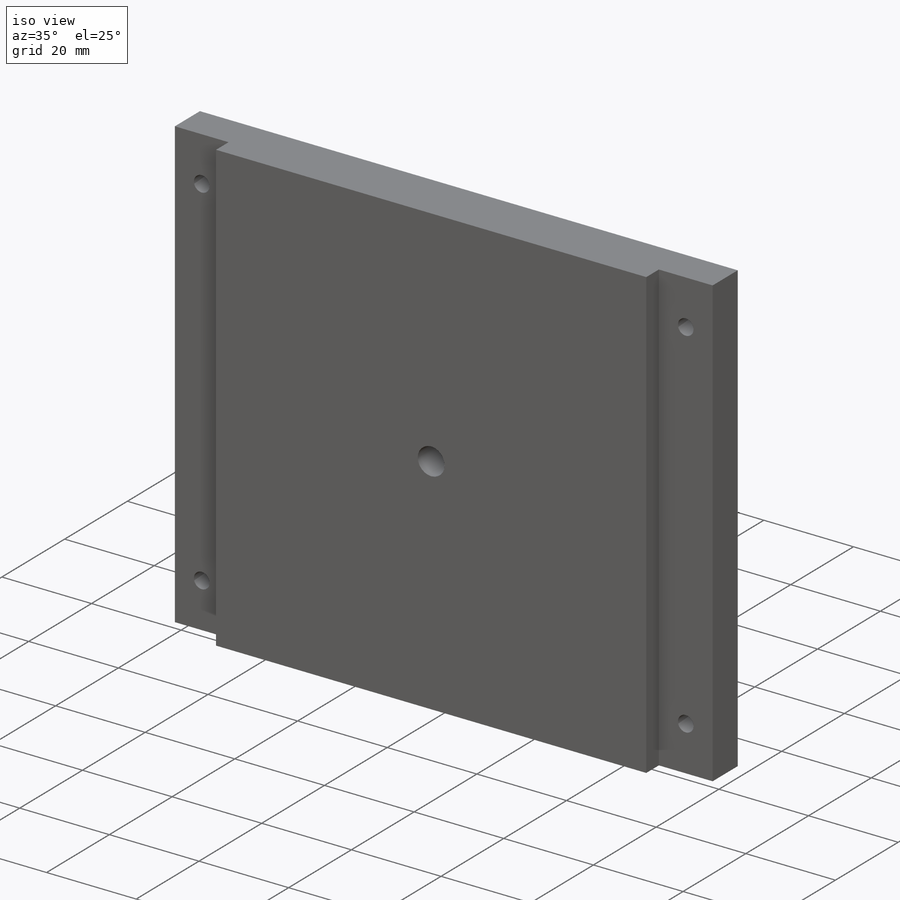
[diagram: iso view]
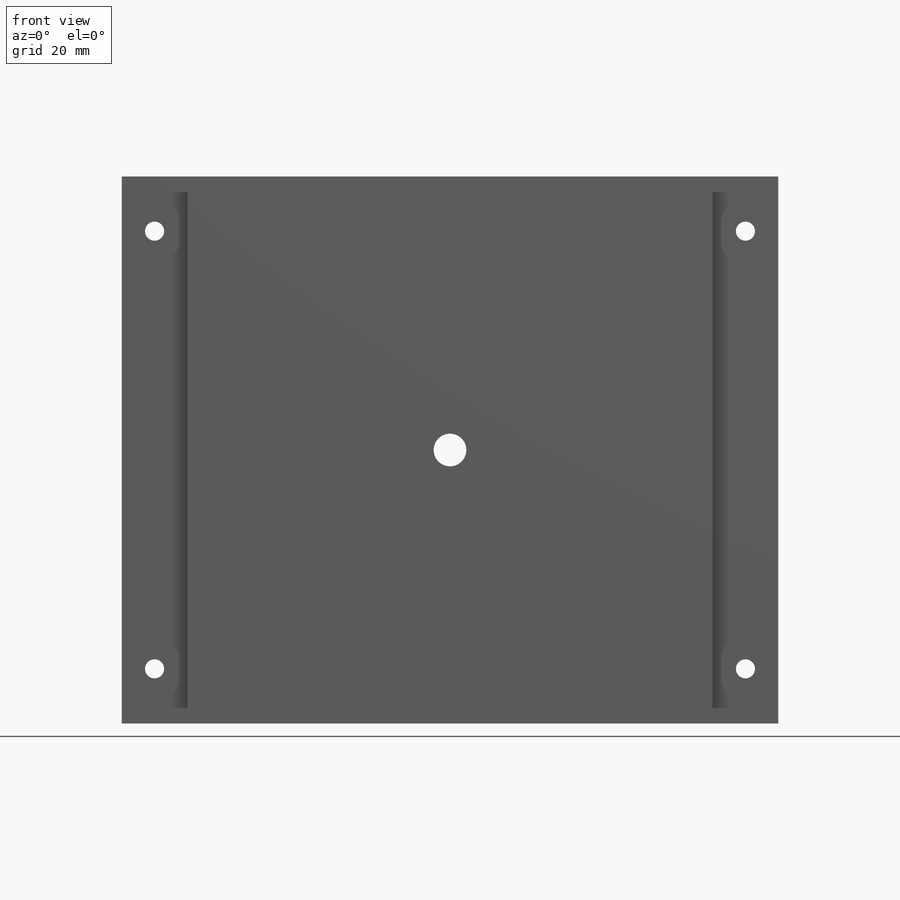
[diagram: front view]
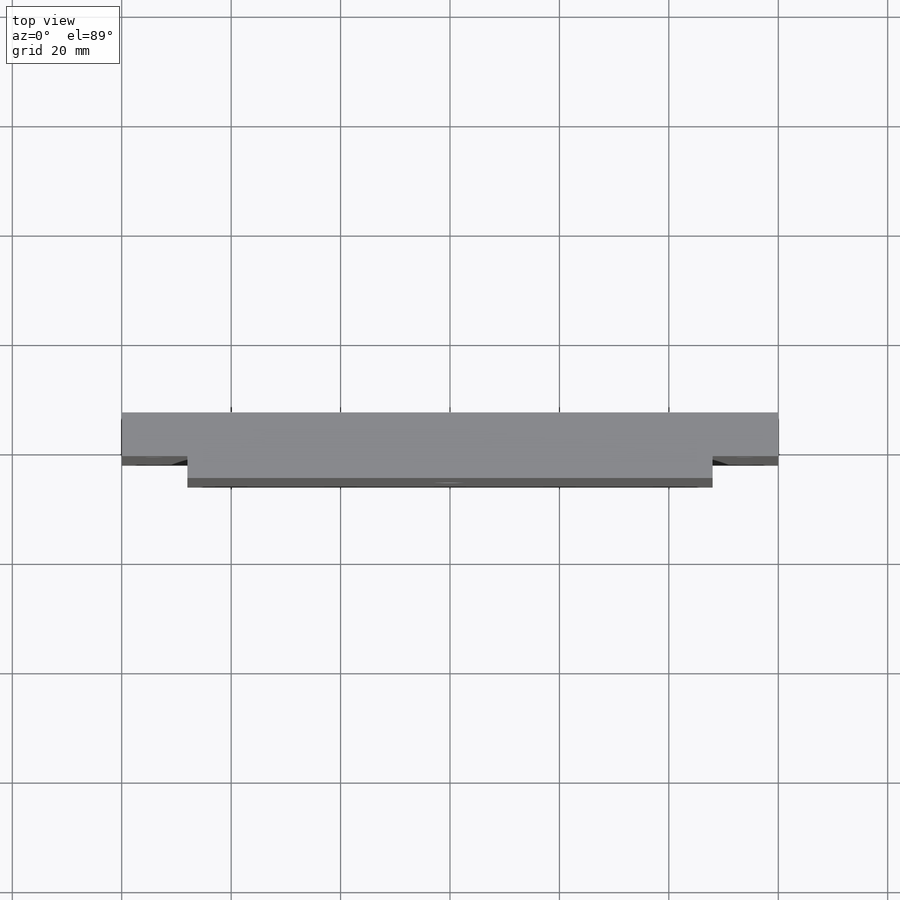
[diagram: top view]
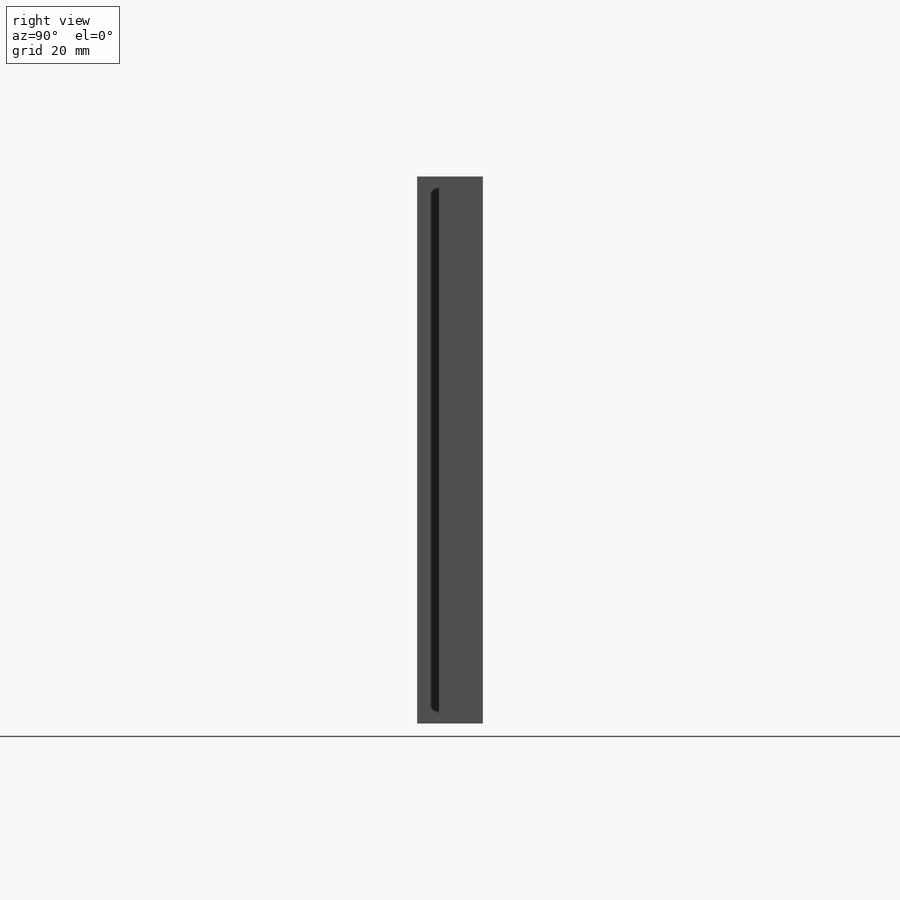
[diagram: right view]
SOLIDWORKS PART (.sldprt)
format: sldprt  version: not decoded by parser v0  size: 649,216 bytes
history: native  units: mm
features: sketch x6, extrude x2, cut_extrude x2, material x1, hole x1, mirror x1, fillet x1 (+13 scaffold rows collapsed)
feature tree (27):
  scaffold x13  (default folders/planes/origin — collapsed)
  material  "Pine"
  sketch  "Sketch1"  dims[D1=100.0mm D2=120.0mm]
  extrude  "Boss-Extrude1"  Depth=12mm
  sketch  "Sketch2"  dims[D1=6.0mm]
  cut_extrude  "Cut-Extrude1"  [1 undecoded]
  sketch  "Sketch3"  dims[D1=12.0mm D2=12.0mm]
  cut_extrude  "Cut-Extrude2"  Depth=4mm
  hole  "Ø3.5 (3.5) Diameter Hole1"  Diameter=3.5mm Depth=8mm
  sketch  "Sketch5"  dims[D1=6.0mm D2=80.0mm D3=80.0mm]
  sketch  "Sketch4"  dims[hole-wizard template sketch: 60 standard entries collapsed; hole parameters kept: c18.Thru Hole Depth=8.0mm]
  sketch  "Sketch6"  dims[D1=20.0mm D2=15.0mm]
  extrude  "Boss-Extrude2"  Depth=12mm
  mirror  "Mirror2"
  fillet  "Fillet1"  Radius=5mm
decode coverage: 11 of 13 modeling features carry decoded parameters
note: ~ marks probable driven/reference dimensions
note: 1 parameter value undecoded
note: suppression state not decoded; provenance and decode notes live in map.json
